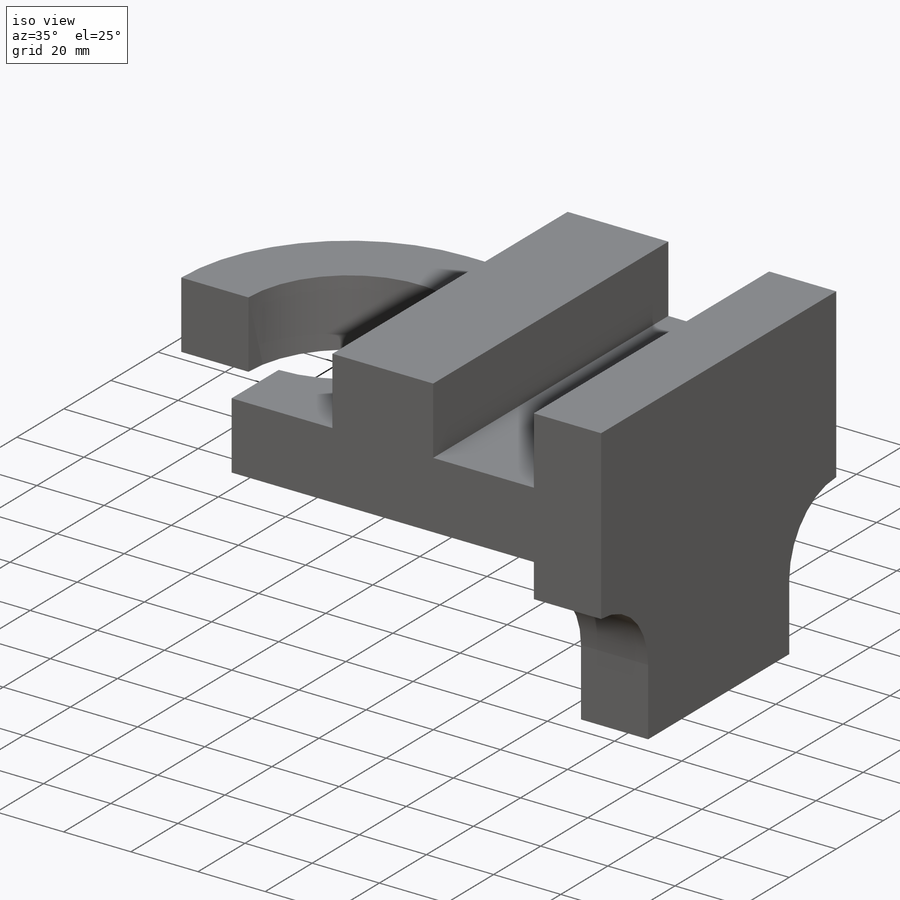
[diagram: iso view]
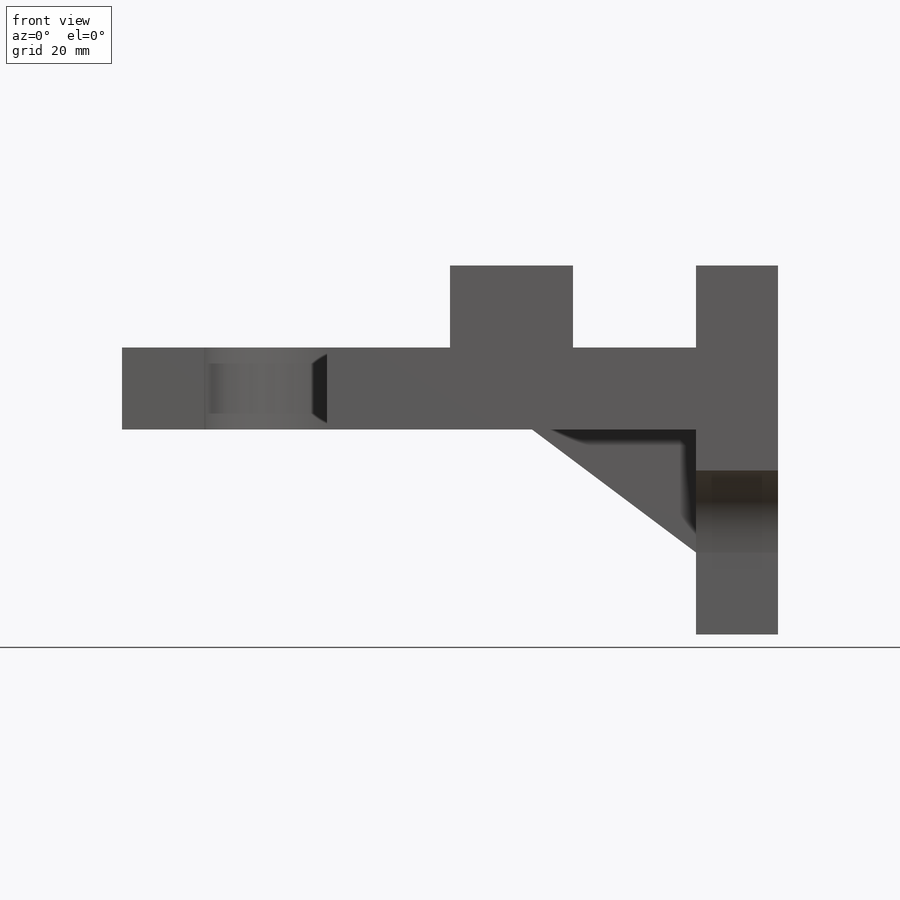
[diagram: front view]
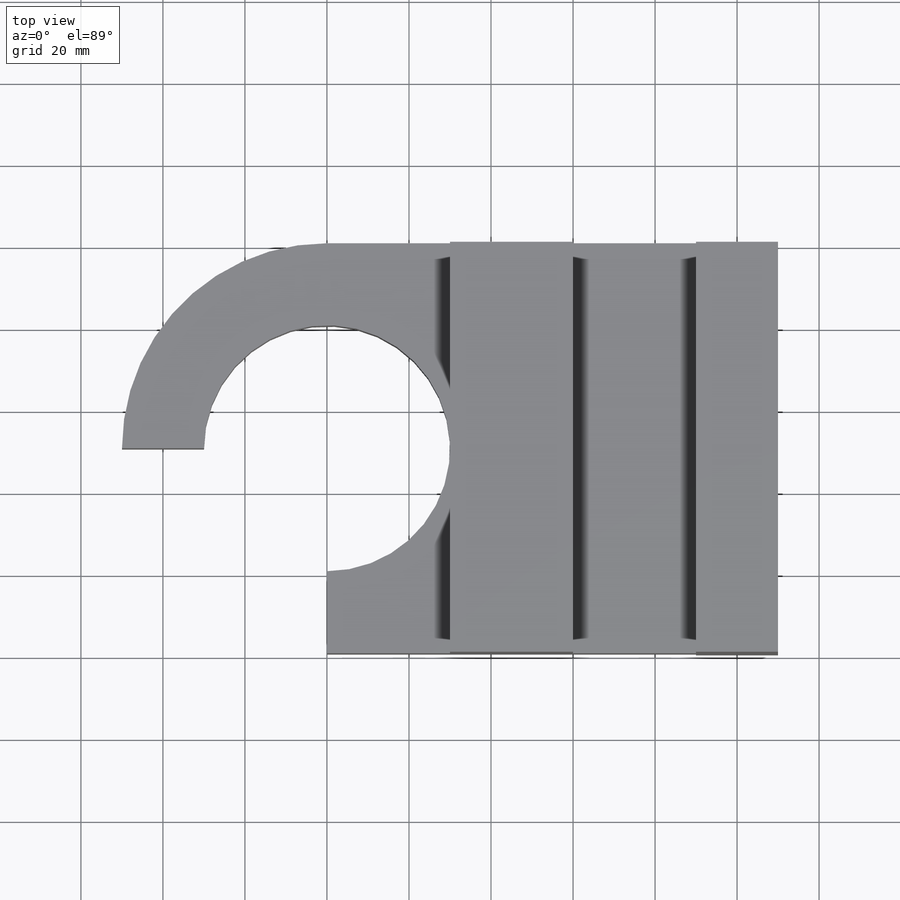
[diagram: top view]
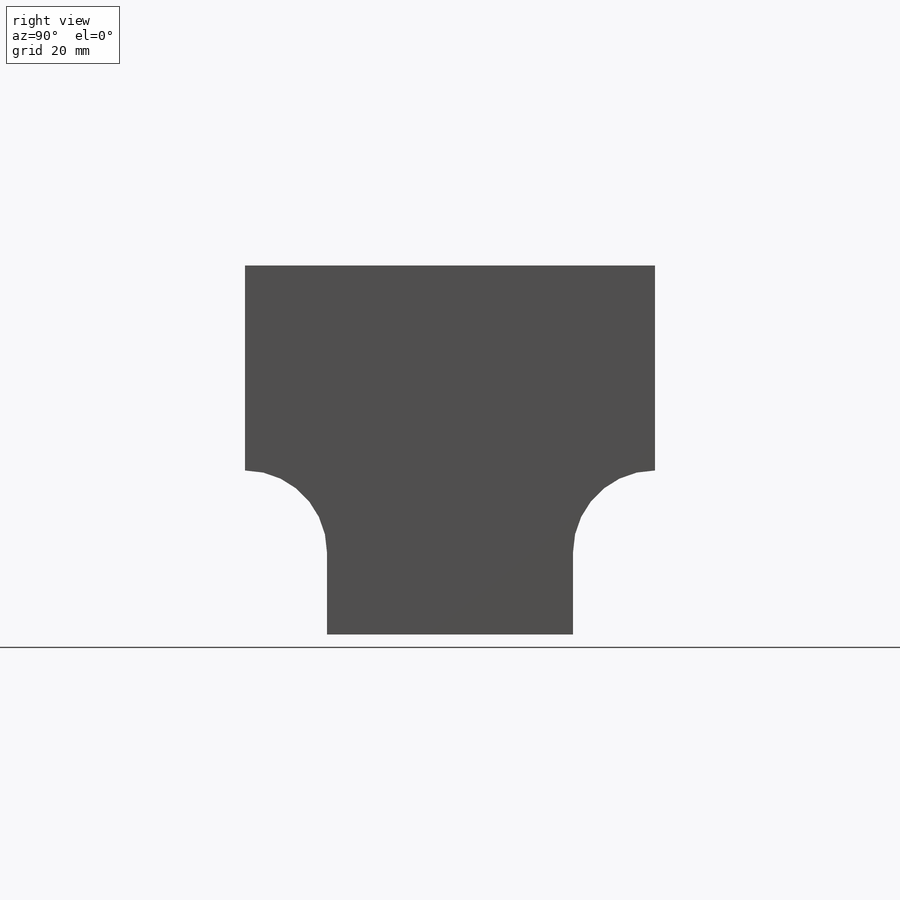
[diagram: right view]
SOLIDWORKS PART (.sldprt)
format: sldprt  version: not decoded by parser v0  size: 252,928 bytes
history: native  units: mm
features: sketch x9, cut_extrude x5, extrude x4, material x1 (+13 scaffold rows collapsed)
feature tree (32):
  scaffold x13  (default folders/planes/origin — collapsed)
  material  "Material <not specified>"
  sketch  "Sketch2"  dims[D1=110.0mm D2=40.0mm]
  extrude  "Boss-Extrude1"  Depth=100mm
  sketch  "Sketch3"  dims[D1=30.0mm D2=30.0mm D3=20.0mm D4=20.0mm D5=20.0mm]
  cut_extrude  "Cut-Extrude1"  Depth=100mm
  sketch  "Sketch4"  dims[D1=0.0mm D2=20.0mm]
  extrude  "Boss-Extrude3"  Depth=50mm
  sketch  "Sketch6"  dims[D1=20.0mm D5=20.0mm D2=10.0mm D3=20.0mm D4=10.0mm D6=20.0mm D7=20.0mm]
  cut_extrude  "Cut-Extrude2"  Depth=50mm
  sketch  "Sketch7"  dims[D1=40.0mm D2=20.0mm D3=40.0mm D4=40.0mm D5=40.0mm]
  extrude  "Boss-Extrude4"  Depth=30mm
  sketch  "Sketch8"
  cut_extrude  "Cut-Extrude3"  Depth=30mm
  sketch  "Sketch9"  dims[D1=50.0mm D2=50.0mm]
  extrude  "Boss-Extrude5"  Depth=20mm
  sketch  "Sketch10"  dims[D1=30.0mm D2=20.0mm D3=0.0mm D4=20.0mm]
  cut_extrude  "Cut-Extrude5"  Depth=20mm
  sketch  "Sketch12"
  cut_extrude  "Cut-Extrude6"  Depth=20mm
decode coverage: 16 of 18 modeling features carry decoded parameters
note: suppression state not decoded; provenance and decode notes live in map.json
